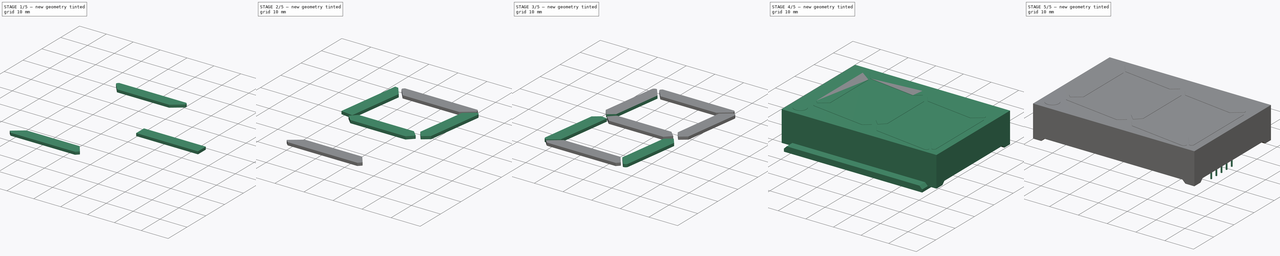
[diagram: build sequence overview — one tinted view per stage of 5, left to right]
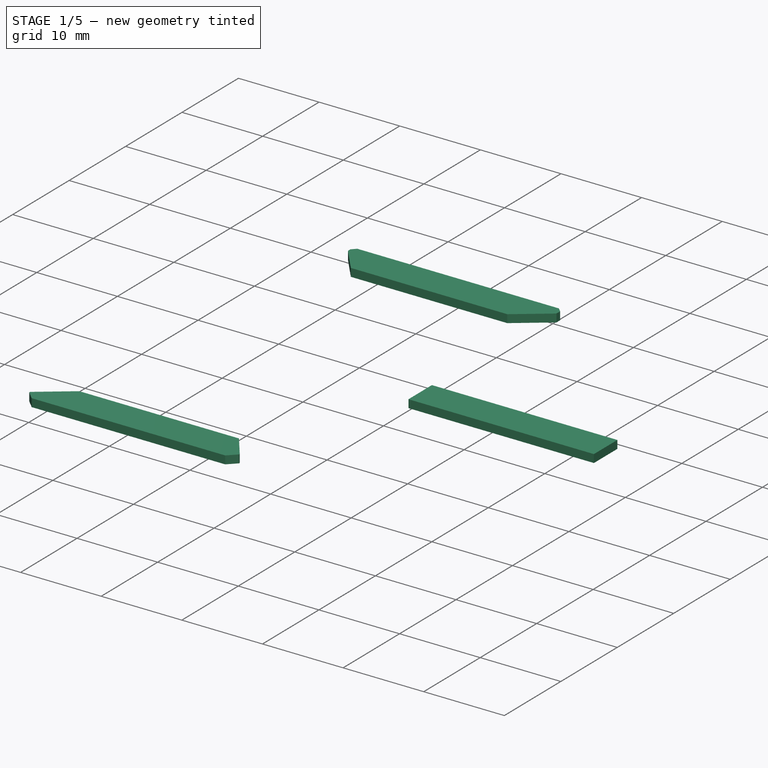
[diagram: stage 1 of 5 — iso view after this stage's code; geometry added in this stage tinted green]
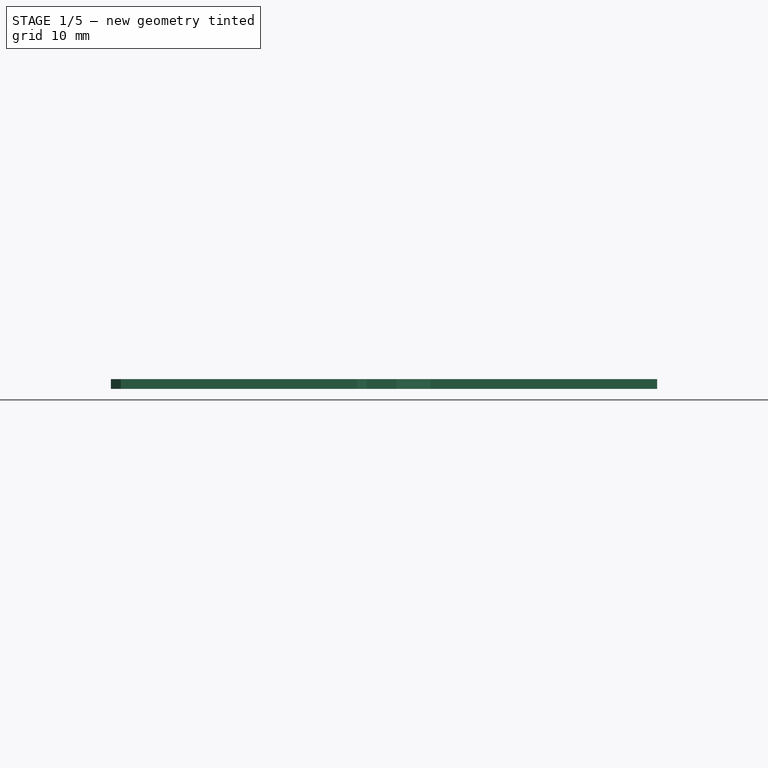
[diagram: stage 1 of 5 — front view after this stage's code; geometry added in this stage tinted green]
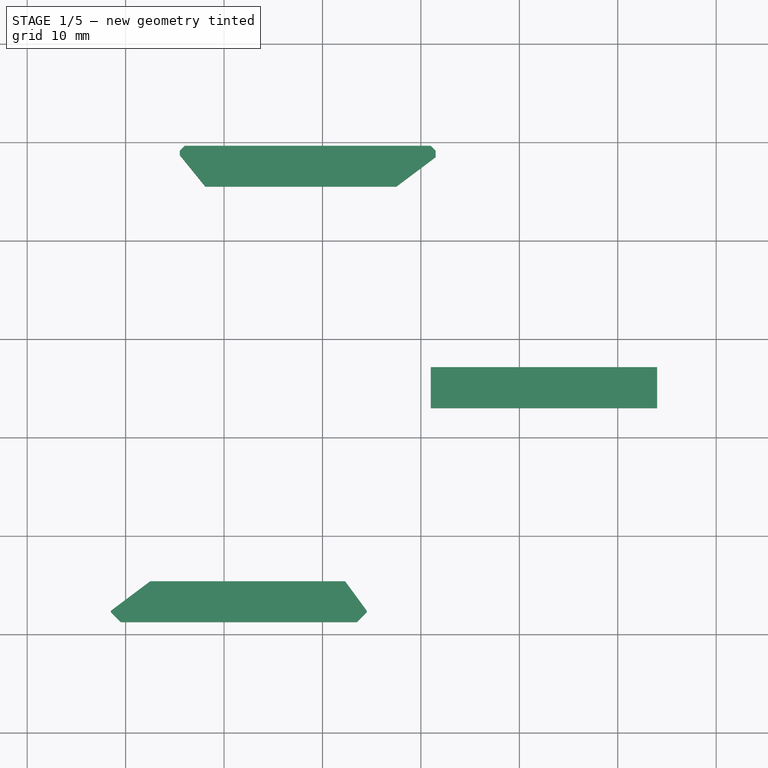
[diagram: stage 1 of 5 — top view after this stage's code; geometry added in this stage tinted green]
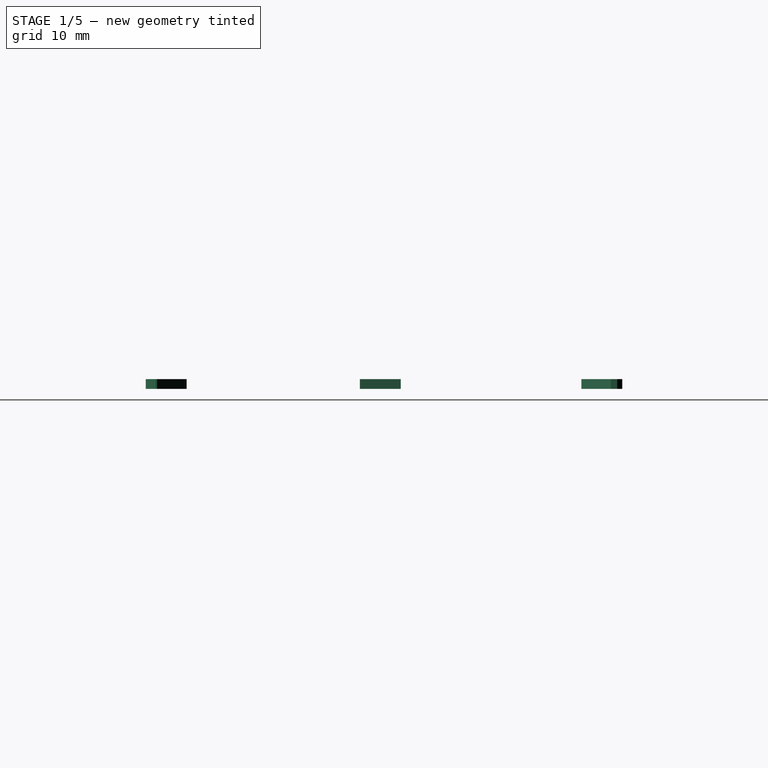
[diagram: stage 1 of 5 — right view after this stage's code; geometry added in this stage tinted green]
FCSTD DOCUMENT  (FreeCAD 0.17R11223 (Git))
Label: SBC18-11_3
License: All rights reserved
LicenseURL: http://en.wikipedia.org/wiki/All_rights_reserved
objects: Part::Chamfer×28, Part::Cylinder×11, Part::Box×9, Part::Fillet×4, Part::Cut×2, Sketcher::SketchObject×1, PartDesign::Pad×1, PartDesign::Body×1, App::DocumentObjectGroup×1, Part::MultiFuse×1
note: 59 computed .brp shape members not serialized (recipe doc carries the construction recipe); baked Part::Feature solids carry a one-line shape summary decoded from their .brp

FEATURE [Part::Box] Box002  label="Kub002"
  AttacherType = Attacher::AttachEngine3D
  Height = 1
  Length = 23
  Placement = pos=(21,23,10.1) rot=(0,0,1;0rad)
  Width = 4.15
FEATURE [Part::Box] Box007  label="Kub007"
  AttacherType = Attacher::AttachEngine3D
  Height = 1
  Length = 26
  Placement = pos=(-4.5,45.5,11.1) rot=(0,0,1;0rad)
  Width = 4.15
FEATURE [Part::Box] Box008  label="Kub008"
  AttacherType = Attacher::AttachEngine3D
  Height = 1
  Length = 26
  Placement = pos=(-11.5,1.25,12.1) rot=(0,0,1;0rad)
  Width = 4.15
FEATURE [Part::Chamfer] Chamfer022
  Base = -> Box008
  Edges = 1 edges: [Edge3 r1=3 r2=4]
FEATURE [Part::Chamfer] Chamfer023
  Base = -> Chamfer022
  Edges = 1 edges r=1: [Edge3]
FEATURE [Part::Chamfer] Chamfer024
  Base = -> Chamfer023
  Edges = 1 edges: [Edge18 r1=2.2 r2=3]
FEATURE [Part::Chamfer] Chamfer025
  Base = -> Chamfer024
  Edges = 1 edges r=1: [Edge15]
  Placement = pos=(0,0,-2) rot=(0,0,1;0rad)
FEATURE [Part::Chamfer] Chamfer026
  Base = -> Box007
  Edges = 1 edges: [Edge1 r1=3.2 r2=2.6]
FEATURE [Part::Chamfer] Chamfer027
  Base = -> Chamfer026
  Edges = 1 edges r=0.5: [Edge3]
FEATURE [Part::Chamfer] Chamfer028
  Base = -> Chamfer027
  Edges = 1 edges: [Edge18 r1=4 r2=3]
FEATURE [Part::Chamfer] Chamfer029
  Base = -> Chamfer028
  Edges = 1 edges r=0.5: [Edge15]
  Placement = pos=(0,0,-1) rot=(0,0,1;0rad)
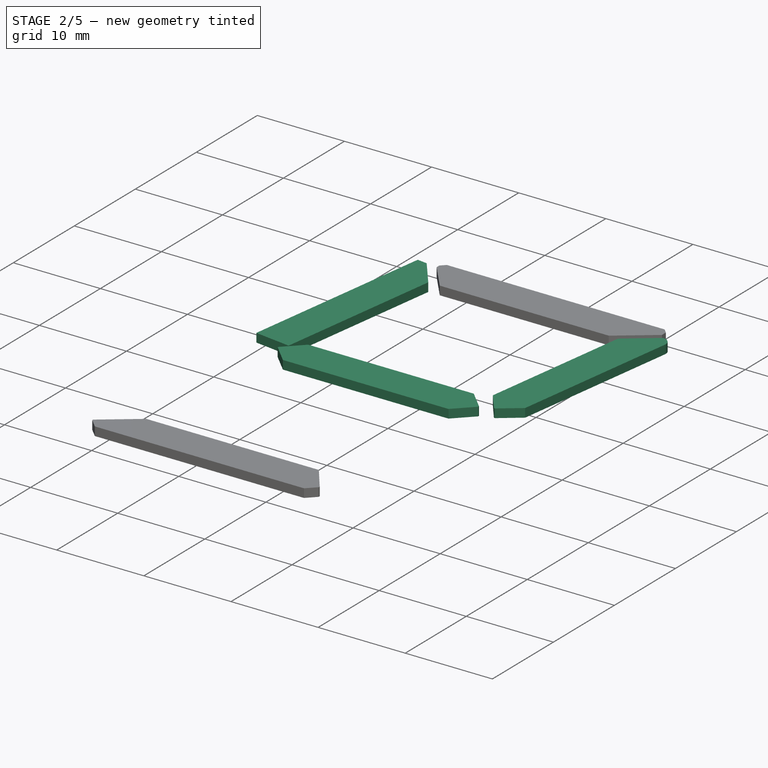
[diagram: stage 2 of 5 — iso view after this stage's code; geometry added in this stage tinted green]
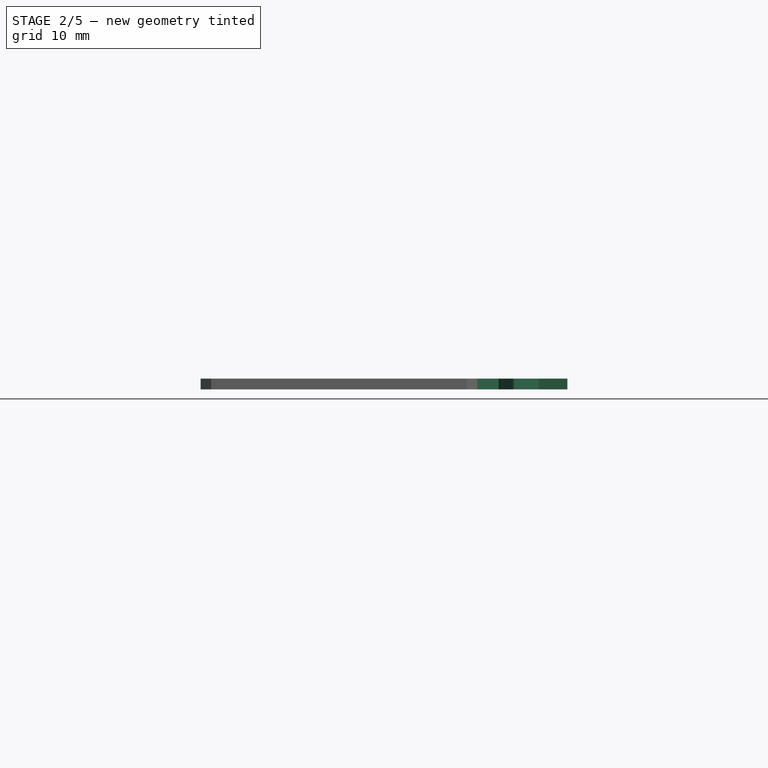
[diagram: stage 2 of 5 — front view after this stage's code; geometry added in this stage tinted green]
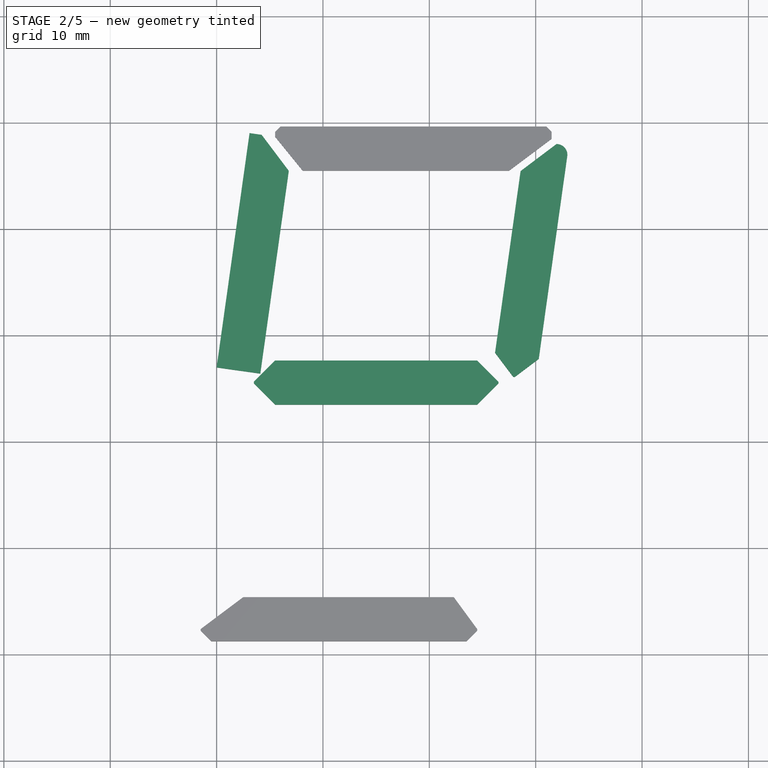
[diagram: stage 2 of 5 — top view after this stage's code; geometry added in this stage tinted green]
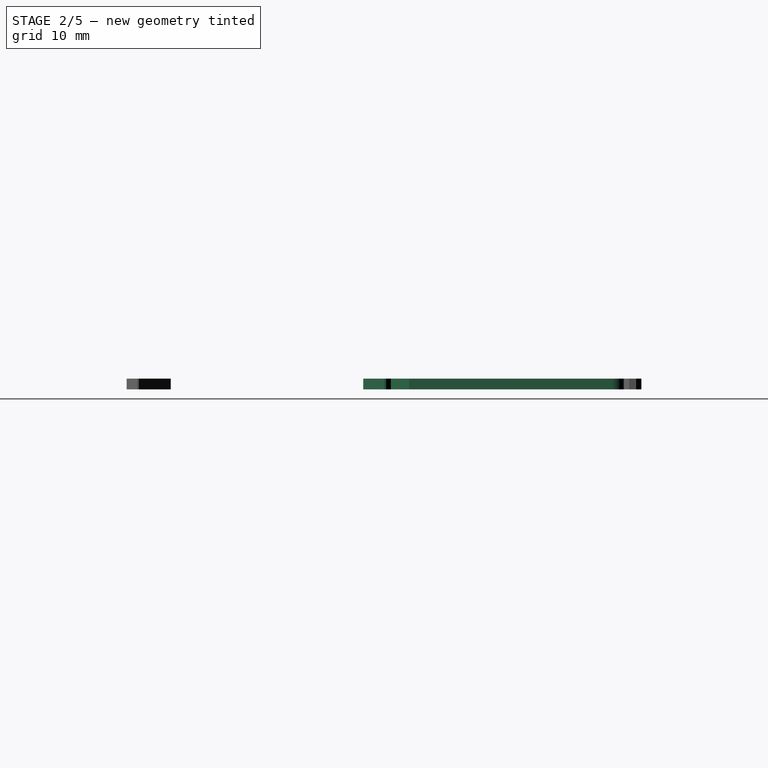
[diagram: stage 2 of 5 — right view after this stage's code; geometry added in this stage tinted green]
FEATURE [Part::Box] Box003  label="Kub003"
  AttacherType = Attacher::AttachEngine3D
  Height = 1
  Length = 4.15
  Placement = pos=(-10,27,10.1) rot=(0,0,-1;0.139626rad)
  Width = 22.25
FEATURE [Part::Box] Box006  label="Kub006"
  AttacherType = Attacher::AttachEngine3D
  Height = 1
  Length = 4.15
  Placement = pos=(15,27,10.1) rot=(0,0,-1;0.139626rad)
  Width = 22.25
FEATURE [Part::Chamfer] Chamfer006
  Base = -> Box003
  Edges = 1 edges r=3: [Edge7]
FEATURE [Part::Chamfer] Chamfer007
  Base = -> Box006
  Edges = 1 edges r=3: [Edge3]
FEATURE [Part::Chamfer] Chamfer012
  Base = -> Chamfer007
  Edges = 1 edges r=2: [Edge12]
FEATURE [Part::Chamfer] Chamfer013
  Base = -> Chamfer012
  Edges = 1 edges r=2: [Edge9]
FEATURE [Part::Fillet] Fillet003
  Base = -> Chamfer013
  Edges = 1 edges r=1: [Edge17]
  Placement = pos=(0.9,-0.6,0) rot=(0,0,1;0rad)
FEATURE [Part::Chamfer] Chamfer018
  Base = -> Box002
  Edges = 1 edges r=2: [Edge1]
FEATURE [Part::Chamfer] Chamfer019
  Base = -> Chamfer018
  Edges = 1 edges r=2: [Edge3]
FEATURE [Part::Chamfer] Chamfer020
  Base = -> Chamfer019
  Edges = 1 edges r=2: [Edge17]
FEATURE [Part::Chamfer] Chamfer021
  Base = -> Chamfer020
  Edges = 1 edges r=2: [Edge15]
  Placement = pos=(-27.5,0.5,0) rot=(0,0,1;0rad)
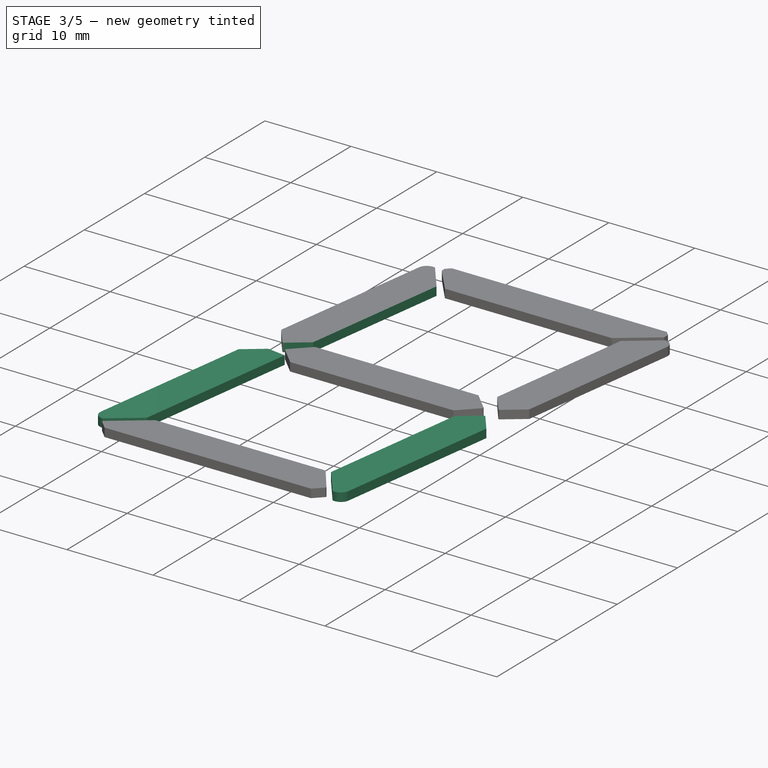
[diagram: stage 3 of 5 — iso view after this stage's code; geometry added in this stage tinted green]
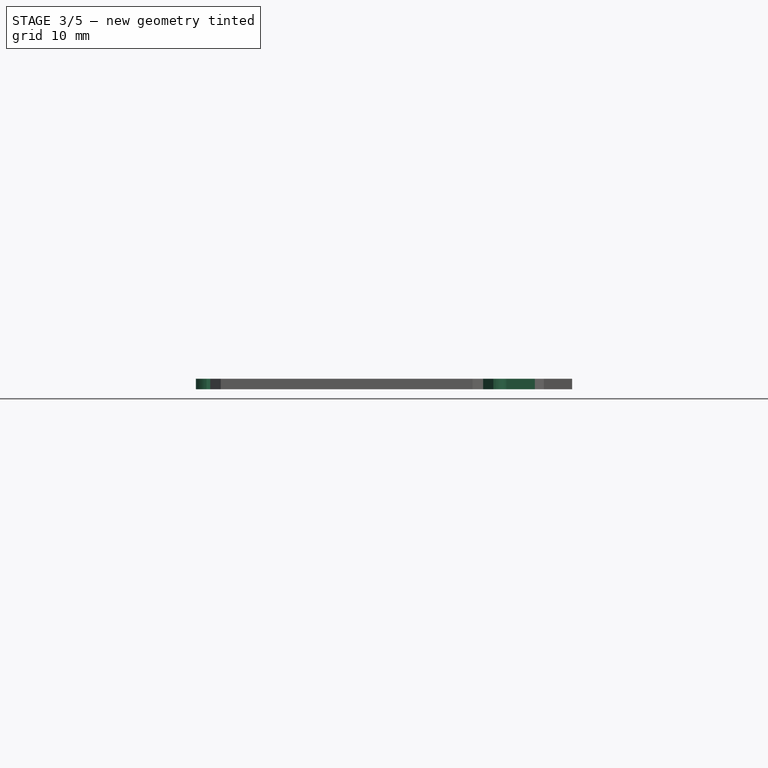
[diagram: stage 3 of 5 — front view after this stage's code; geometry added in this stage tinted green]
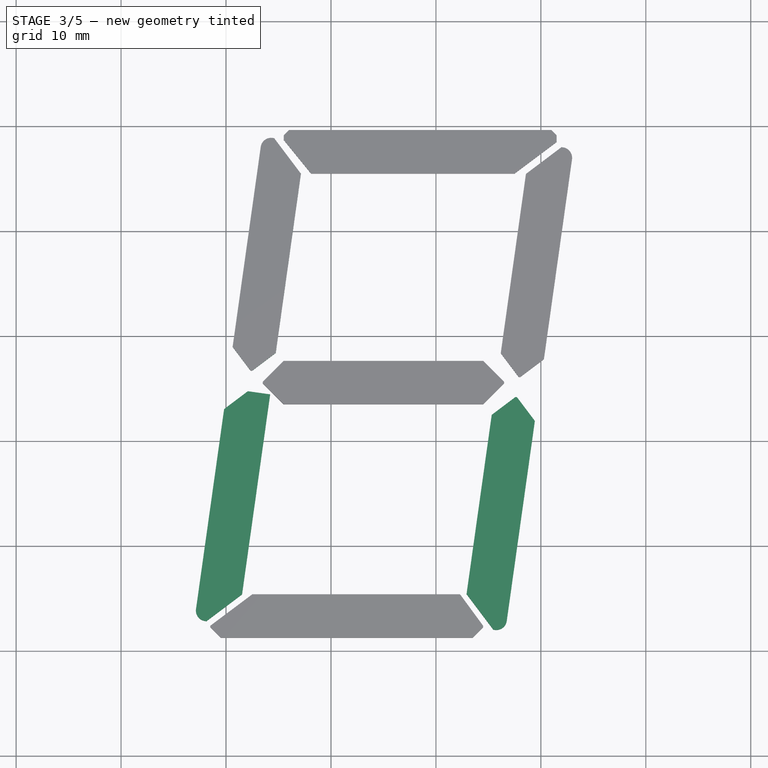
[diagram: stage 3 of 5 — top view after this stage's code; geometry added in this stage tinted green]
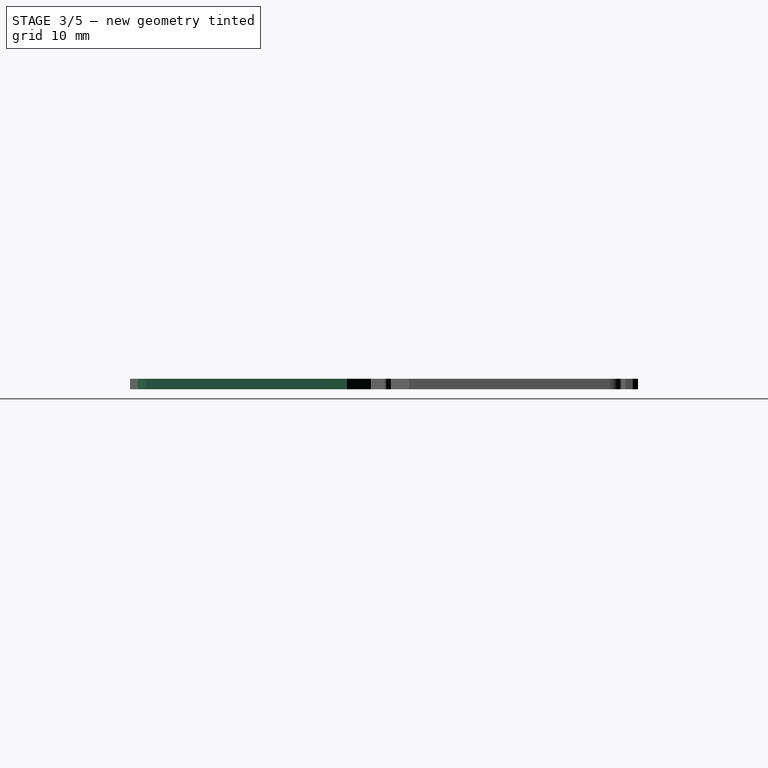
[diagram: stage 3 of 5 — right view after this stage's code; geometry added in this stage tinted green]
FEATURE [Part::Box] Box004  label="Kub004"
  AttacherType = Attacher::AttachEngine3D
  Height = 1
  Length = 4.15
  Placement = pos=(-13,3,10.1) rot=(0,0,-1;0.139626rad)
  Width = 22.25
FEATURE [Part::Box] Box005  label="Kub005"
  AttacherType = Attacher::AttachEngine3D
  Height = 1
  Length = 4.15
  Placement = pos=(11,3,10.1) rot=(0,0,-1;0.139626rad)
  Width = 22.25
FEATURE [Part::Chamfer] Chamfer004
  Base = -> Box004
  Edges = 1 edges r=3: [Edge5]
FEATURE [Part::Chamfer] Chamfer005
  Base = -> Box005
  Edges = 1 edges r=3: [Edge1]
FEATURE [Part::Fillet] Fillet
  Base = -> Chamfer004
  Edges = 1 edges r=1: [Edge15]
FEATURE [Part::Chamfer] Chamfer008
  Base = -> Fillet
  Edges = 1 edges r=2: [Edge14]
FEATURE [Part::Fillet] Fillet001
  Base = -> Chamfer005
  Edges = 1 edges r=1: [Edge15]
FEATURE [Part::Chamfer] Chamfer010
  Base = -> Fillet001
  Edges = 1 edges r=2: [Edge14]
FEATURE [Part::Chamfer] Chamfer011
  Base = -> Chamfer010
  Edges = 1 edges r=2: [Edge16]
  Placement = pos=(1.5,-0.55,0) rot=(0,0,1;0rad)
FEATURE [Part::Chamfer] Chamfer014
  Base = -> Chamfer006
  Edges = 1 edges r=2: [Edge12]
FEATURE [Part::Chamfer] Chamfer015
  Base = -> Chamfer014
  Edges = 1 edges r=2: [Edge15]
FEATURE [Part::Fillet] Fillet002
  Base = -> Chamfer015
  Edges = 1 edges r=1: [Edge17]
  Placement = pos=(0.35,0,0) rot=(0,0,1;0rad)
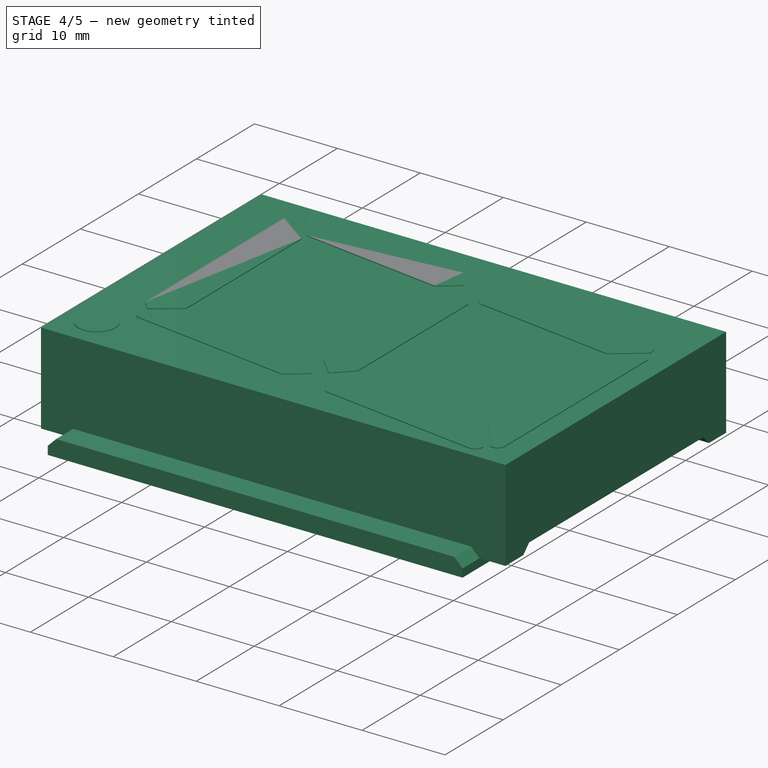
[diagram: stage 4 of 5 — iso view after this stage's code; geometry added in this stage tinted green]
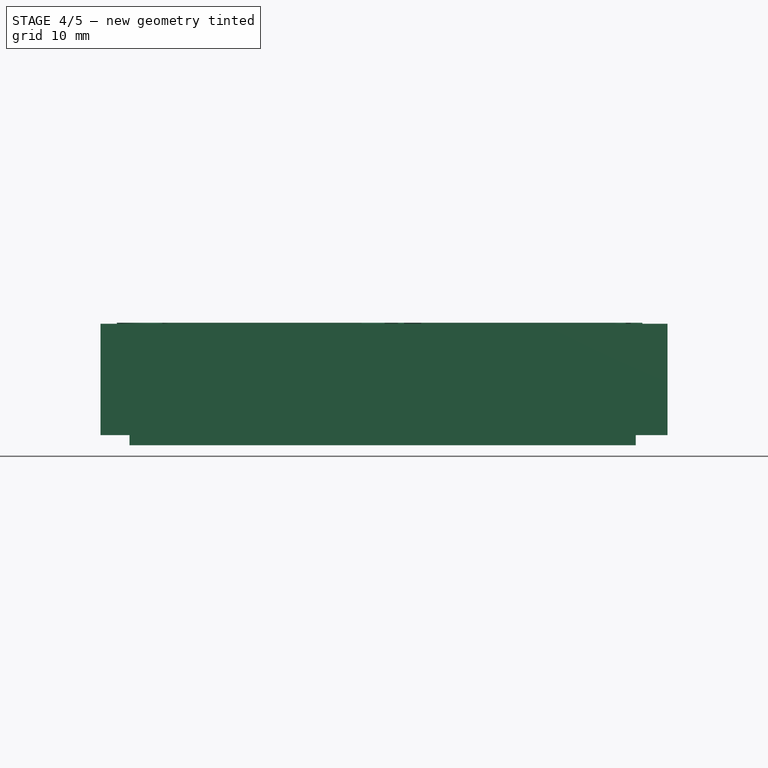
[diagram: stage 4 of 5 — front view after this stage's code; geometry added in this stage tinted green]
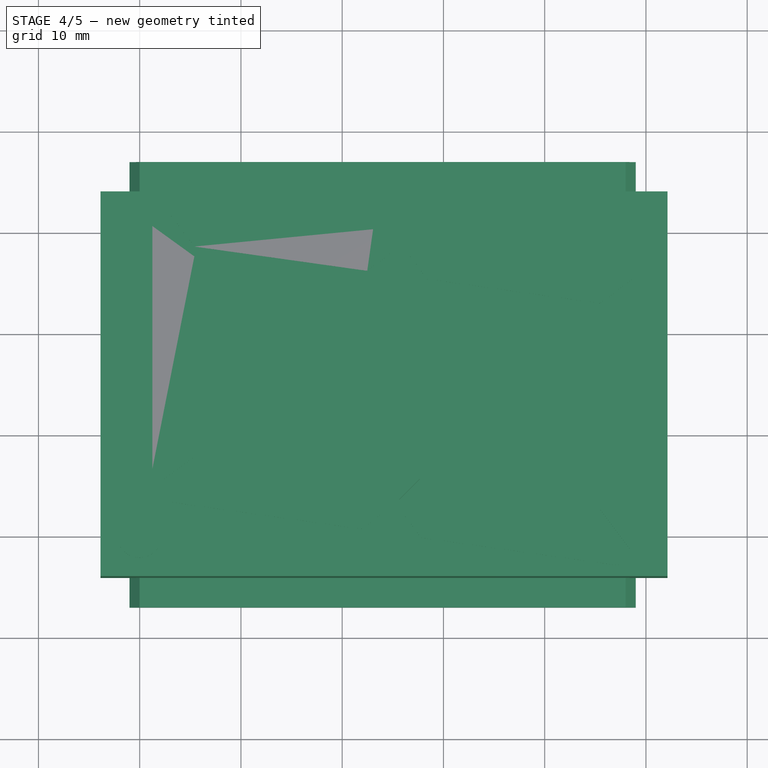
[diagram: stage 4 of 5 — top view after this stage's code; geometry added in this stage tinted green]
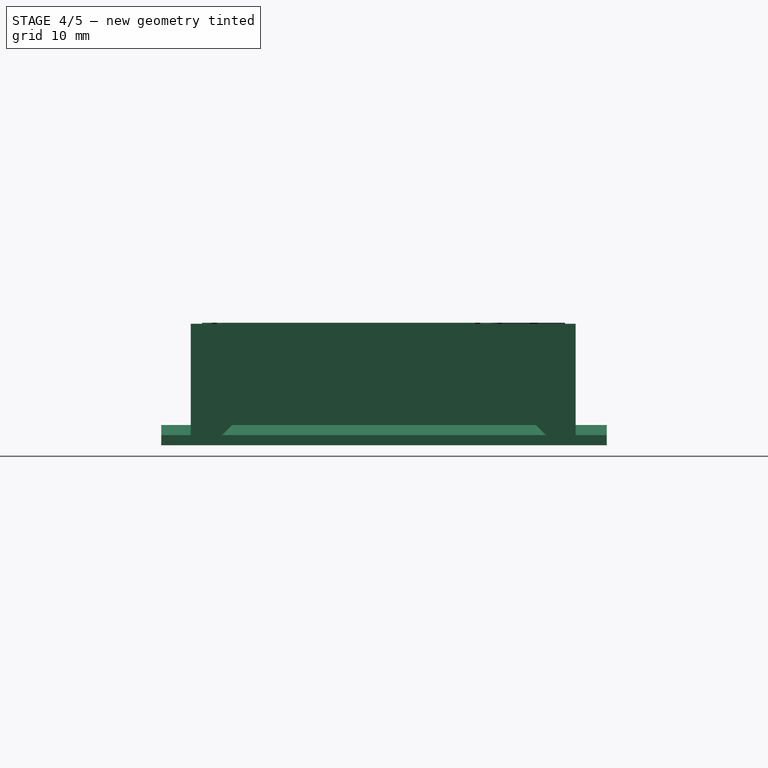
[diagram: stage 4 of 5 — right view after this stage's code; geometry added in this stage tinted green]
FEATURE [Sketcher::SketchObject] Sketch
  MapMode = 5
  Support = -> [XY_Plane]
  sketch-geometry (4):
    g0: LineSegment StartX=-3.87 StartY=13.92 StartZ=0 EndX=52.13 EndY=13.92 EndZ=0
    g1: LineSegment StartX=52.13 StartY=13.92 StartZ=0 EndX=52.13 EndY=-24.08 EndZ=0
    g2: LineSegment StartX=52.13 StartY=-24.08 StartZ=0 EndX=-3.87 EndY=-24.08 EndZ=0
    g3: LineSegment StartX=-3.87 StartY=-24.08 StartZ=0 EndX=-3.87 EndY=13.92 EndZ=0
  constraints (12):
    c: Coincident(g0,g1)
    c: Coincident(g1,g2)
    c: Coincident(g2,g3)
    c: Coincident(g3,g0)
    c: Horizontal(g0)
    c: Horizontal(g2)
    c: Vertical(g1)
    c: Vertical(g3)
    c: DistanceY(g1,g0) = 38
    c: DistanceX(g2,g1) = 56
    c: DistanceX(g2,g-1) = 3.87
    c: DistanceY(g-1,g0) = 13.92
FEATURE [PartDesign::Pad] Pad
  Length = 11
  Length2 = 100
  Profile = -> Sketch
  Type = 0
FEATURE [App::DocumentObjectGroup] Grupp  label="Pins"
  Group = -> [Cylinder,Cylinder001,Cylinder002,Cylinder003,Cylinder004,Cylinder005,Cylinder006,Cylinder007,Cylinder008,Cylinder009]
FEATURE [Part::Box] Box  label="Kub"
  AttacherType = Attacher::AttachEngine3D
  Height = 2
  Length = 32
  Placement = pos=(-11,-6,-1) rot=(0,0,1;0rad)
  Width = 60
FEATURE [Part::Chamfer] Chamfer
  Base = -> Box
  Edges = 1 edges r=1: [Edge6]
FEATURE [Part::Chamfer] Chamfer001
  Base = -> Chamfer
  Edges = 1 edges r=1: [Edge15]
  Placement = pos=(0,0,0) rot=(0,0,-1;1.5708rad)
FEATURE [Part::Box] Box001  label="Kub001"
  AttacherType = Attacher::AttachEngine3D
  Height = 2
  Length = 44
  Placement = pos=(-17,-1,-1) rot=(0,0,1;0rad)
  Width = 50
FEATURE [Part::Chamfer] Chamfer002
  Base = -> Box001
  Edges = 1 edges r=1: [Edge10]
FEATURE [Part::Chamfer] Chamfer003
  Base = -> Chamfer002
  Edges = 1 edges r=1: [Edge13]
  Placement = pos=(0,0,0) rot=(0,0,-1;1.5708rad)
FEATURE [Part::Cylinder] Cylinder010  label="Cylinder"
  Angle = 360
  AttacherType = Attacher::AttachEngine3D
  Height = 1
  Placement = pos=(20,0,10.1) rot=(0,0,1;0rad)
  Radius = 2.25
FEATURE [Part::Chamfer] Chamfer009
  Base = -> Chamfer008
  Edges = 1 edges r=2: [Edge16]
FEATURE [Part::Cut] Cut
  Base = -> Body
  Tool = -> Chamfer001
FEATURE [Part::MultiFuse] Fusion  label="Digit001"
  Placement = pos=(0,0,0) rot=(0,0,-1;1.5708rad)
  Shapes = -> [Cylinder010,Chamfer021,Fillet002,Chamfer011,Chamfer009,Fillet003,Chamfer029,Chamfer025]
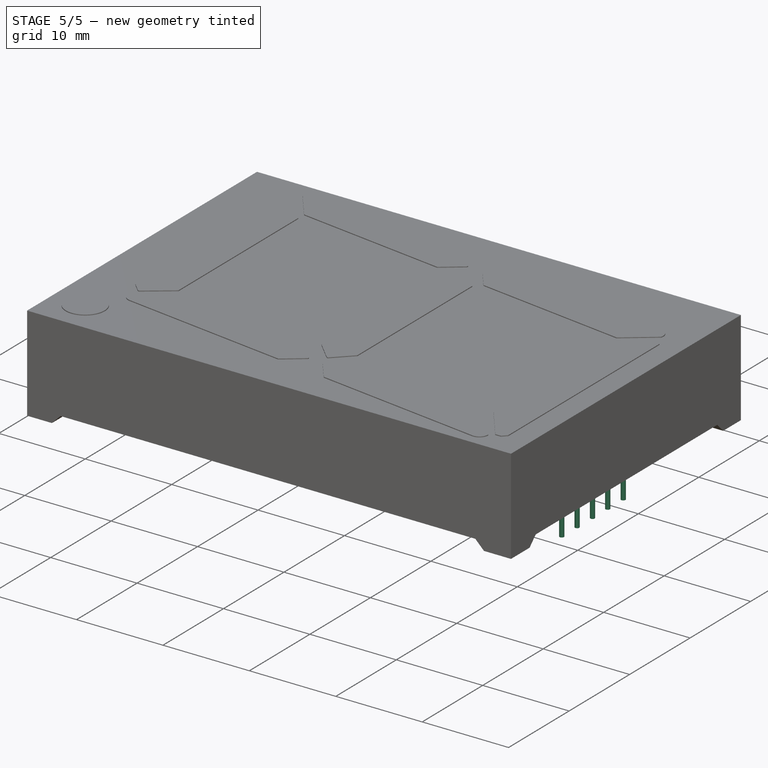
[diagram: stage 5 of 5 — iso view after this stage's code; geometry added in this stage tinted green]
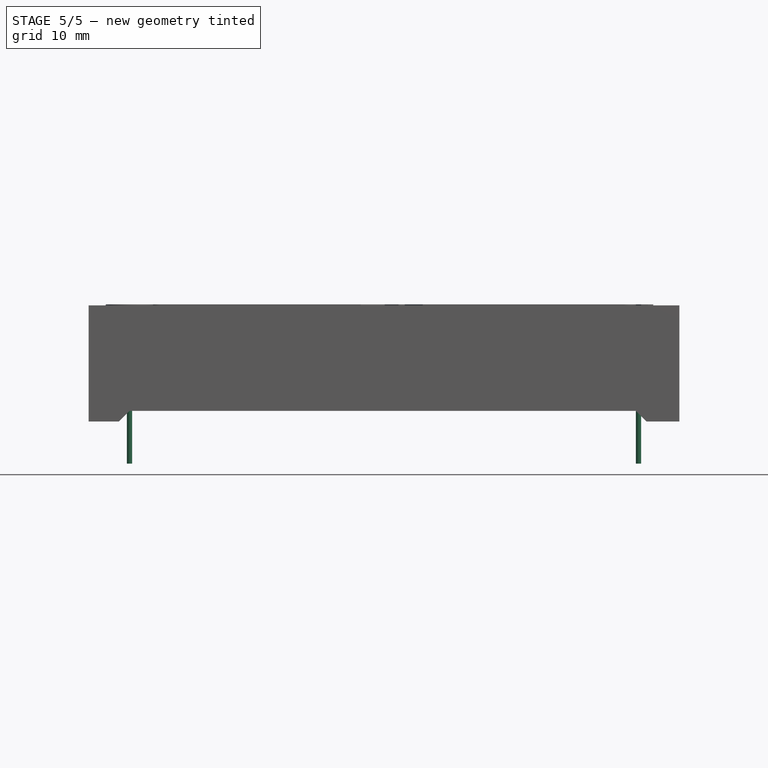
[diagram: stage 5 of 5 — front view after this stage's code; geometry added in this stage tinted green]
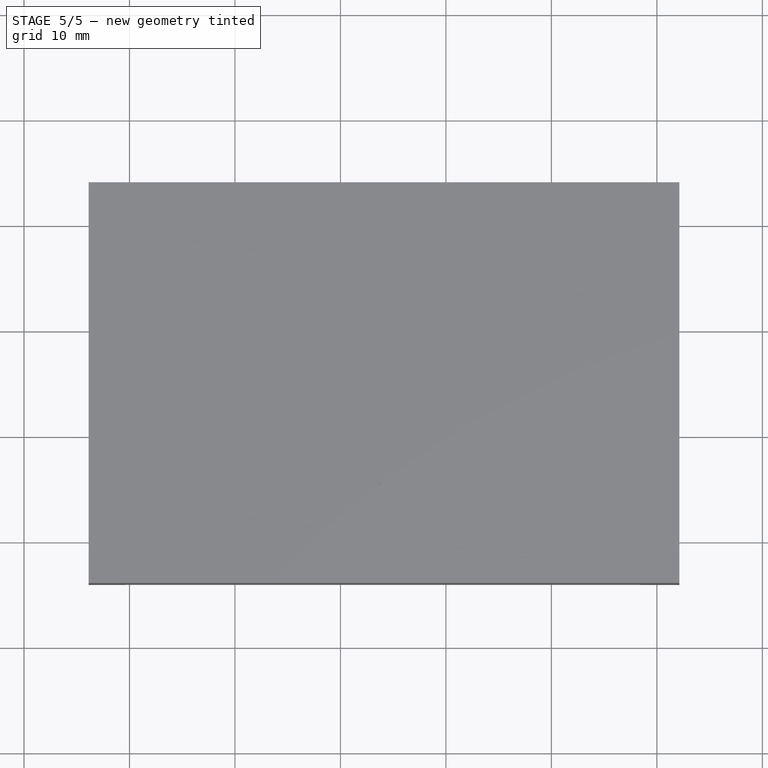
[diagram: stage 5 of 5 — top view after this stage's code; geometry added in this stage tinted green]
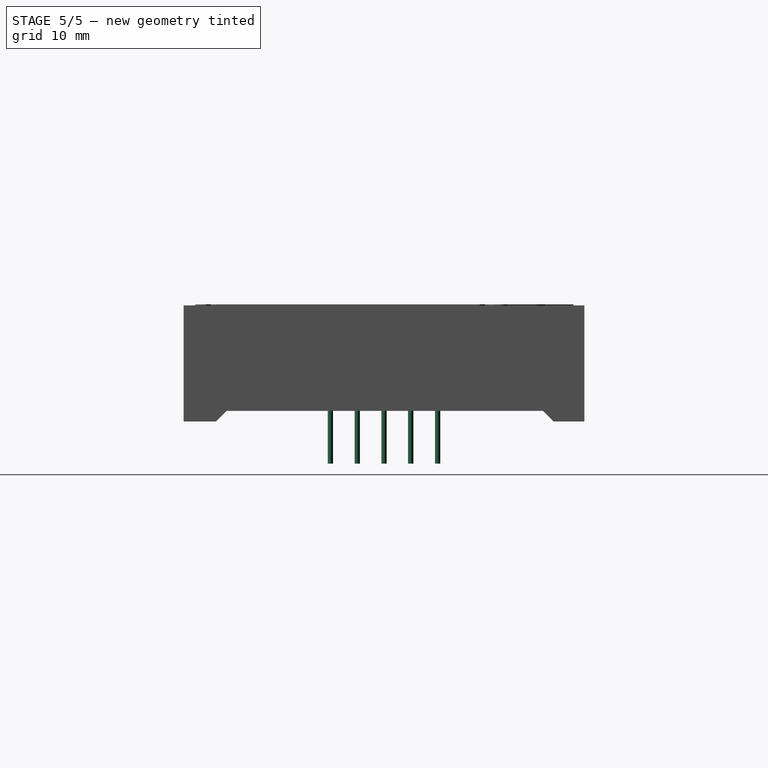
[diagram: stage 5 of 5 — right view after this stage's code; geometry added in this stage tinted green]
FEATURE [PartDesign::Body] Body
  Group = -> [Sketch,Pad]
  Origin = -> BodyOrigin
  Tip = -> Pad
FEATURE [Part::Cylinder] Cylinder  label="Pin001"
  Angle = 360
  AttacherType = Attacher::AttachEngine3D
  Height = 8
  Placement = pos=(0,0,-4) rot=(0,0,1;0rad)
  Radius = 0.25
FEATURE [Part::Cylinder] Cylinder001  label="Pin002"
  Angle = 360
  AttacherType = Attacher::AttachEngine3D
  Height = 8
  Placement = pos=(0,-2.54,-4) rot=(0,0,1;0rad)
  Radius = 0.25
FEATURE [Part::Cylinder] Cylinder002  label="Pin003"
  Angle = 360
  AttacherType = Attacher::AttachEngine3D
  Height = 8
  Placement = pos=(0,-5.08,-4) rot=(0,0,1;0rad)
  Radius = 0.25
FEATURE [Part::Cylinder] Cylinder003  label="Pin004"
  Angle = 360
  AttacherType = Attacher::AttachEngine3D
  Height = 8
  Placement = pos=(0,-7.62,-4) rot=(0,0,1;0rad)
  Radius = 0.25
FEATURE [Part::Cylinder] Cylinder004  label="Pin005"
  Angle = 360
  AttacherType = Attacher::AttachEngine3D
  Height = 8
  Placement = pos=(0,-10.16,-4) rot=(0,0,1;0rad)
  Radius = 0.25
FEATURE [Part::Cylinder] Cylinder005  label="Pin006"
  Angle = 360
  AttacherType = Attacher::AttachEngine3D
  Height = 8
  Placement = pos=(48.26,-10.16,-4) rot=(0,0,1;0rad)
  Radius = 0.25
FEATURE [Part::Cylinder] Cylinder006  label="Pin007"
  Angle = 360
  AttacherType = Attacher::AttachEngine3D
  Height = 8
  Placement = pos=(48.26,-7.62,-4) rot=(0,0,1;0rad)
  Radius = 0.25
FEATURE [Part::Cylinder] Cylinder007  label="Pin008"
  Angle = 360
  AttacherType = Attacher::AttachEngine3D
  Height = 8
  Placement = pos=(48.26,-5.08,-4) rot=(0,0,1;0rad)
  Radius = 0.25
FEATURE [Part::Cylinder] Cylinder008  label="Pin009"
  Angle = 360
  AttacherType = Attacher::AttachEngine3D
  Height = 8
  Placement = pos=(48.26,-2.56,-4) rot=(0,0,1;0rad)
  Radius = 0.25
FEATURE [Part::Cylinder] Cylinder009  label="Pin010"
  Angle = 360
  AttacherType = Attacher::AttachEngine3D
  Height = 8
  Placement = pos=(48.26,0,-4) rot=(0,0,1;0rad)
  Radius = 0.25
FEATURE [Part::Cut] Cut001
  Base = -> Cut
  Tool = -> Chamfer003
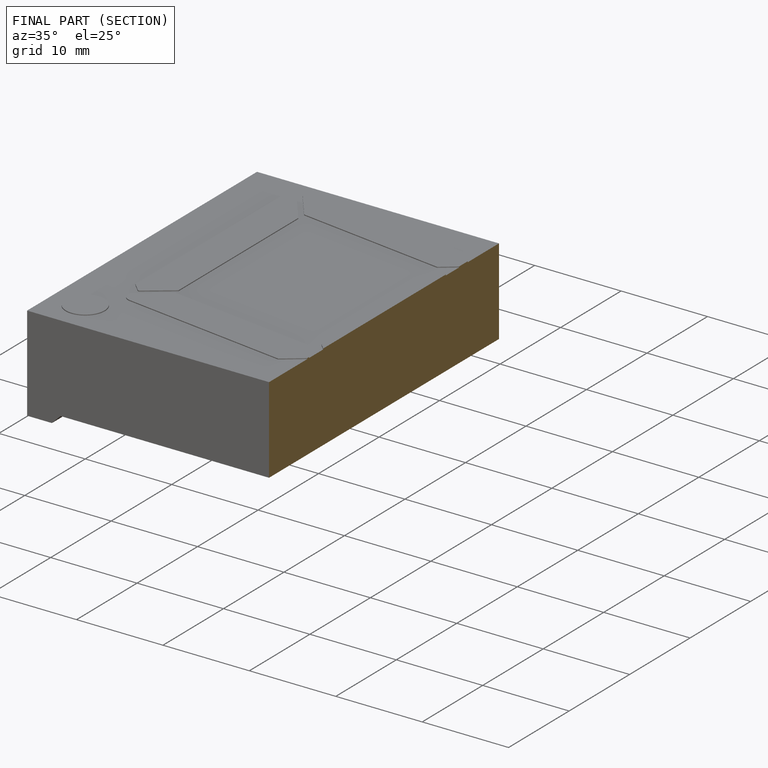
[diagram: finished part — half-section view (interior)]
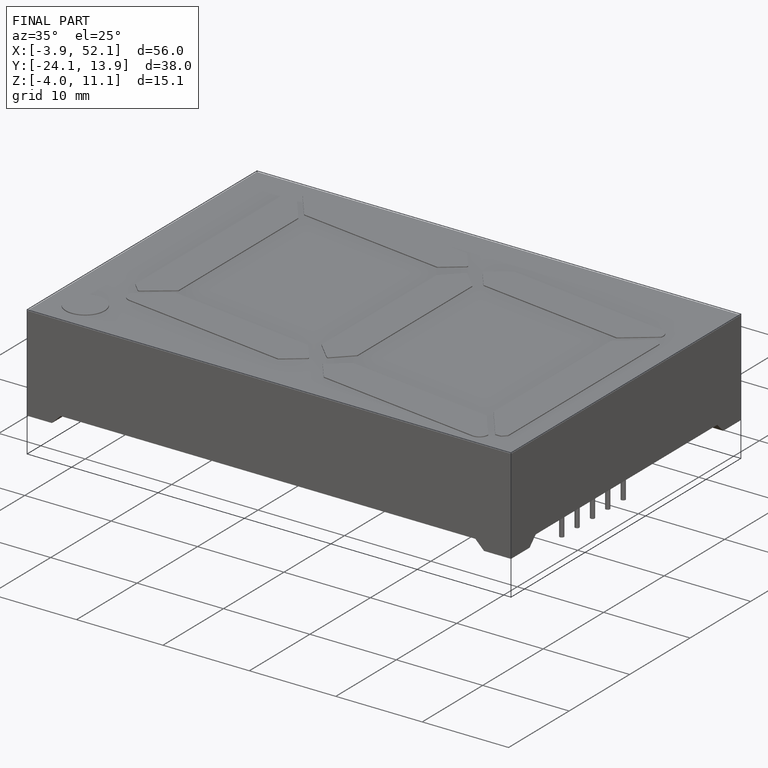
[diagram: finished part — iso view with bounding-box wireframe]
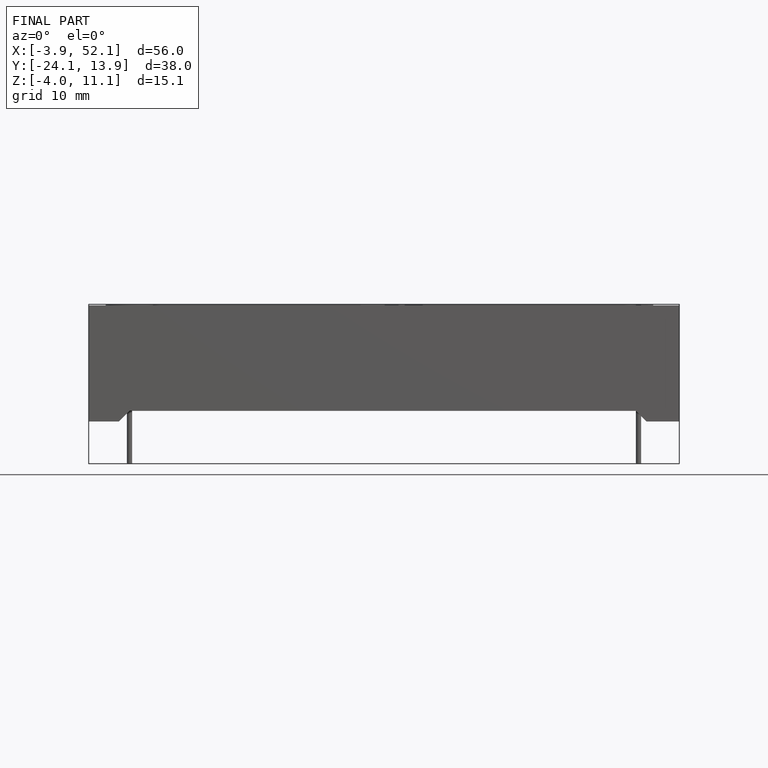
[diagram: finished part — front view with bounding-box wireframe]
